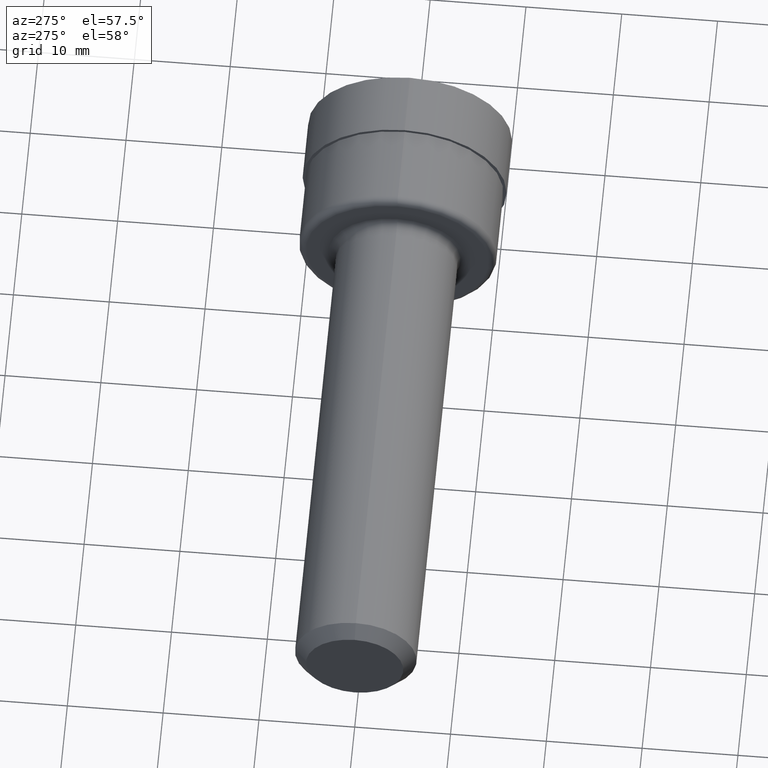
[diagram: clean part render]
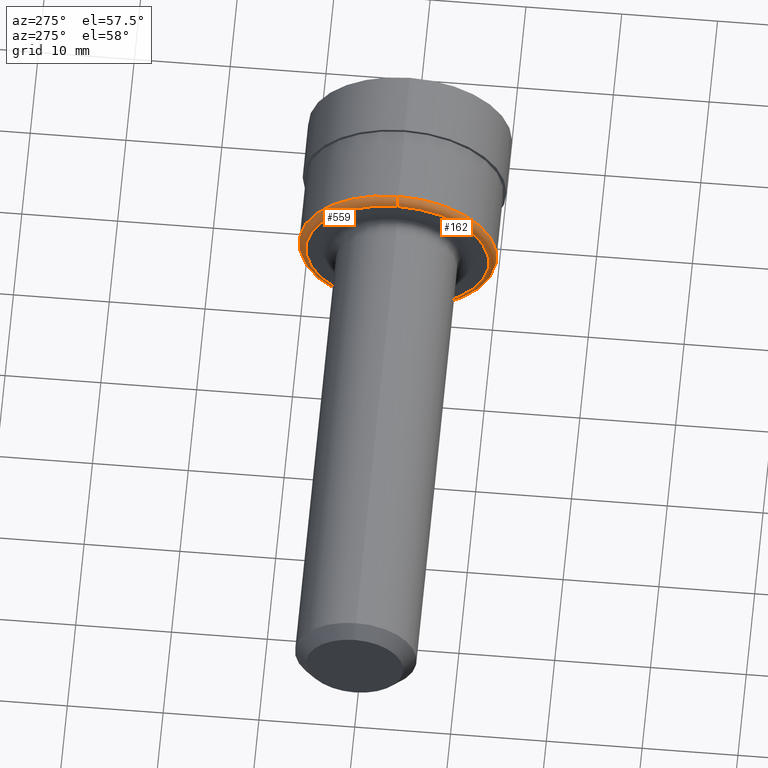
[diagram: same view with one multi-face feature highlighted, each face labeled with its STEP entity id]
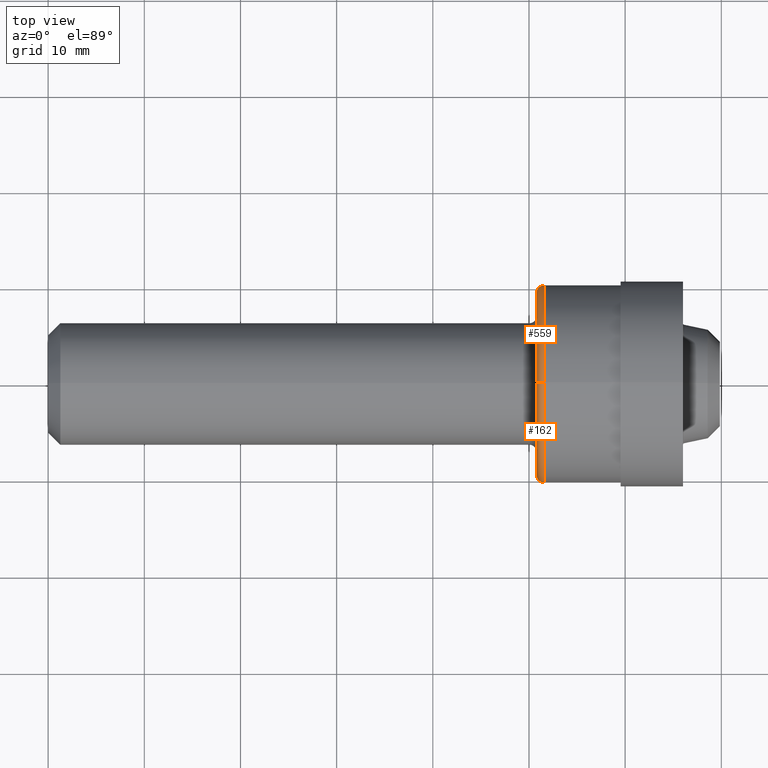
[diagram: same view with one multi-face feature highlighted, each face labeled with its STEP entity id]
A machine part, auxiliary view. The highlighted faces form ONE feature: a constant-radius fillet chain: 2 tangent blend faces with common blend radius 0.762 mm. The faces share edges in the B-rep.
A second angle (top view) of the same feature is appended — it is thin or edge-on in the first view.
Their STEP definitions:
[1] entity #559 (Torus):
#9 = DIRECTION ( 'NONE',  ( 0.000000000000000000, -1.000000000000000000, 0.000000000000000000 ) ) ;
#78 = CARTESIAN_POINT ( 'NONE',  ( 2.029999999999999805, 4.972066004538254105E-17, -0.4059999999999999720 ) ) ;
#88 = TOROIDAL_SURFACE ( 'NONE', #536, 0.3760000000000000564, 0.02999999999999998848 ) ;
#97 = ORIENTED_EDGE ( 'NONE', *, *, #504, .F. ) ;
#127 = DIRECTION ( 'NONE',  ( 0.000000000000000000, 0.000000000000000000, 1.000000000000000000 ) ) ;
#135 = DIRECTION ( 'NONE',  ( -0.000000000000000000, 1.000000000000000000, 1.224646799147353207E-16 ) ) ;
#151 = DIRECTION ( 'NONE',  ( 0.000000000000000000, 0.000000000000000000, -1.000000000000000000 ) ) ;
#156 = AXIS2_PLACEMENT_3D ( 'NONE', #240, #587, #640 ) ;
#160 = CARTESIAN_POINT ( 'NONE',  ( 2.029999999999999805, 0.000000000000000000, 0.4059999999999999720 ) ) ;
#175 = ORIENTED_EDGE ( 'NONE', *, *, #399, .T. ) ;
#189 = ORIENTED_EDGE ( 'NONE', *, *, #540, .F. ) ;
#218 = CARTESIAN_POINT ( 'NONE',  ( 2.029999999999999805, 4.604671964794048956E-17, -0.3760000000000000564 ) ) ;
#220 = CIRCLE ( 'NONE', #156, 0.3760000000000000564 ) ;
#223 = DIRECTION ( 'NONE',  ( -1.000000000000000000, -0.000000000000000000, -0.000000000000000000 ) ) ;
#240 = CARTESIAN_POINT ( 'NONE',  ( 2.000000000000000000, 0.000000000000000000, 0.000000000000000000 ) ) ;
#262 = FACE_OUTER_BOUND ( 'NONE', #315, .T. ) ;
#264 = VERTEX_POINT ( 'NONE', #268 ) ;
#268 = CARTESIAN_POINT ( 'NONE',  ( 2.000000000000000000, 4.788368984666151531E-17, -0.3760000000000000564 ) ) ;
#277 = CIRCLE ( 'NONE', #638, 0.02999999999999995379 ) ;
#289 = CARTESIAN_POINT ( 'NONE',  ( 2.000000000000000000, 0.000000000000000000, 0.3760000000000000564 ) ) ;
#307 = AXIS2_PLACEMENT_3D ( 'NONE', #491, #223, #127 ) ;
#315 = EDGE_LOOP ( 'NONE', ( #582, #175, #97, #189 ) ) ;
#343 = CIRCLE ( 'NONE', #546, 0.02999999999999995379 ) ;
#367 = VERTEX_POINT ( 'NONE', #160 ) ;
#371 = DIRECTION ( 'NONE',  ( -1.000000000000000000, -0.000000000000000000, -0.000000000000000000 ) ) ;
#386 = CIRCLE ( 'NONE', #307, 0.4059999999999999720 ) ;
#399 = EDGE_CURVE ( 'NONE', #490, #264, #343, .T. ) ;
#422 = EDGE_CURVE ( 'NONE', #367, #490, #386, .T. ) ;
#436 = CARTESIAN_POINT ( 'NONE',  ( 2.029999999999999805, 0.000000000000000000, 0.000000000000000000 ) ) ;
#440 = DIRECTION ( 'NONE',  ( 0.000000000000000000, -1.224646799147354933E-16, 1.000000000000000000 ) ) ;
#490 = VERTEX_POINT ( 'NONE', #78 ) ;
#491 = CARTESIAN_POINT ( 'NONE',  ( 2.029999999999999805, 0.000000000000000000, 0.000000000000000000 ) ) ;
#504 = EDGE_CURVE ( 'NONE', #520, #264, #220, .T. ) ;
#520 = VERTEX_POINT ( 'NONE', #289 ) ;
#536 = AXIS2_PLACEMENT_3D ( 'NONE', #436, #371, #624 ) ;
#540 = EDGE_CURVE ( 'NONE', #367, #520, #277, .T. ) ;
#546 = AXIS2_PLACEMENT_3D ( 'NONE', #218, #135, #440 ) ;
#559 = ADVANCED_FACE ( 'NONE', ( #262 ), #88, .T. ) ;
#582 = ORIENTED_EDGE ( 'NONE', *, *, #422, .T. ) ;
#587 = DIRECTION ( 'NONE',  ( -1.000000000000000000, -0.000000000000000000, -0.000000000000000000 ) ) ;
#613 = CARTESIAN_POINT ( 'NONE',  ( 2.029999999999999805, 0.000000000000000000, 0.3760000000000000564 ) ) ;
#624 = DIRECTION ( 'NONE',  ( 0.000000000000000000, 0.000000000000000000, 1.000000000000000000 ) ) ;
#638 = AXIS2_PLACEMENT_3D ( 'NONE', #613, #9, #151 ) ;
#640 = DIRECTION ( 'NONE',  ( 0.000000000000000000, 0.000000000000000000, 1.000000000000000000 ) ) ;
[2] entity #162 (Torus):
#9 = DIRECTION ( 'NONE',  ( 0.000000000000000000, -1.000000000000000000, 0.000000000000000000 ) ) ;
#11 = DIRECTION ( 'NONE',  ( -1.000000000000000000, -0.000000000000000000, -0.000000000000000000 ) ) ;
#78 = CARTESIAN_POINT ( 'NONE',  ( 2.029999999999999805, 4.972066004538254105E-17, -0.4059999999999999720 ) ) ;
#86 = CARTESIAN_POINT ( 'NONE',  ( 2.000000000000000000, 0.000000000000000000, 0.000000000000000000 ) ) ;
#110 = AXIS2_PLACEMENT_3D ( 'NONE', #196, #11, #150 ) ;
#118 = ORIENTED_EDGE ( 'NONE', *, *, #579, .F. ) ;
#135 = DIRECTION ( 'NONE',  ( -0.000000000000000000, 1.000000000000000000, 1.224646799147353207E-16 ) ) ;
#150 = DIRECTION ( 'NONE',  ( 0.000000000000000000, 0.000000000000000000, 1.000000000000000000 ) ) ;
#151 = DIRECTION ( 'NONE',  ( 0.000000000000000000, 0.000000000000000000, -1.000000000000000000 ) ) ;
#158 = DIRECTION ( 'NONE',  ( -1.000000000000000000, -0.000000000000000000, -0.000000000000000000 ) ) ;
#160 = CARTESIAN_POINT ( 'NONE',  ( 2.029999999999999805, 0.000000000000000000, 0.4059999999999999720 ) ) ;
#162 = ADVANCED_FACE ( 'NONE', ( #249 ), #317, .T. ) ;
#196 = CARTESIAN_POINT ( 'NONE',  ( 2.029999999999999805, 0.000000000000000000, 0.000000000000000000 ) ) ;
#218 = CARTESIAN_POINT ( 'NONE',  ( 2.029999999999999805, 4.604671964794048956E-17, -0.3760000000000000564 ) ) ;
#237 = ORIENTED_EDGE ( 'NONE', *, *, #399, .F. ) ;
#249 = FACE_OUTER_BOUND ( 'NONE', #280, .T. ) ;
#264 = VERTEX_POINT ( 'NONE', #268 ) ;
#268 = CARTESIAN_POINT ( 'NONE',  ( 2.000000000000000000, 4.788368984666151531E-17, -0.3760000000000000564 ) ) ;
#277 = CIRCLE ( 'NONE', #638, 0.02999999999999995379 ) ;
#280 = EDGE_LOOP ( 'NONE', ( #237, #330, #337, #118 ) ) ;
#289 = CARTESIAN_POINT ( 'NONE',  ( 2.000000000000000000, 0.000000000000000000, 0.3760000000000000564 ) ) ;
#317 = TOROIDAL_SURFACE ( 'NONE', #110, 0.3760000000000000564, 0.02999999999999998848 ) ;
#327 = AXIS2_PLACEMENT_3D ( 'NONE', #86, #581, #475 ) ;
#330 = ORIENTED_EDGE ( 'NONE', *, *, #454, .T. ) ;
#337 = ORIENTED_EDGE ( 'NONE', *, *, #540, .T. ) ;
#343 = CIRCLE ( 'NONE', #546, 0.02999999999999995379 ) ;
#366 = DIRECTION ( 'NONE',  ( 0.000000000000000000, 0.000000000000000000, 1.000000000000000000 ) ) ;
#367 = VERTEX_POINT ( 'NONE', #160 ) ;
#395 = AXIS2_PLACEMENT_3D ( 'NONE', #618, #158, #366 ) ;
#399 = EDGE_CURVE ( 'NONE', #490, #264, #343, .T. ) ;
#440 = DIRECTION ( 'NONE',  ( 0.000000000000000000, -1.224646799147354933E-16, 1.000000000000000000 ) ) ;
#454 = EDGE_CURVE ( 'NONE', #490, #367, #586, .T. ) ;
#475 = DIRECTION ( 'NONE',  ( 0.000000000000000000, 0.000000000000000000, 1.000000000000000000 ) ) ;
#490 = VERTEX_POINT ( 'NONE', #78 ) ;
#520 = VERTEX_POINT ( 'NONE', #289 ) ;
#540 = EDGE_CURVE ( 'NONE', #367, #520, #277, .T. ) ;
#546 = AXIS2_PLACEMENT_3D ( 'NONE', #218, #135, #440 ) ;
#579 = EDGE_CURVE ( 'NONE', #264, #520, #616, .T. ) ;
#581 = DIRECTION ( 'NONE',  ( -1.000000000000000000, -0.000000000000000000, -0.000000000000000000 ) ) ;
#586 = CIRCLE ( 'NONE', #395, 0.4059999999999999720 ) ;
#613 = CARTESIAN_POINT ( 'NONE',  ( 2.029999999999999805, 0.000000000000000000, 0.3760000000000000564 ) ) ;
#616 = CIRCLE ( 'NONE', #327, 0.3760000000000000564 ) ;
#618 = CARTESIAN_POINT ( 'NONE',  ( 2.029999999999999805, 0.000000000000000000, 0.000000000000000000 ) ) ;
#638 = AXIS2_PLACEMENT_3D ( 'NONE', #613, #9, #151 ) ;